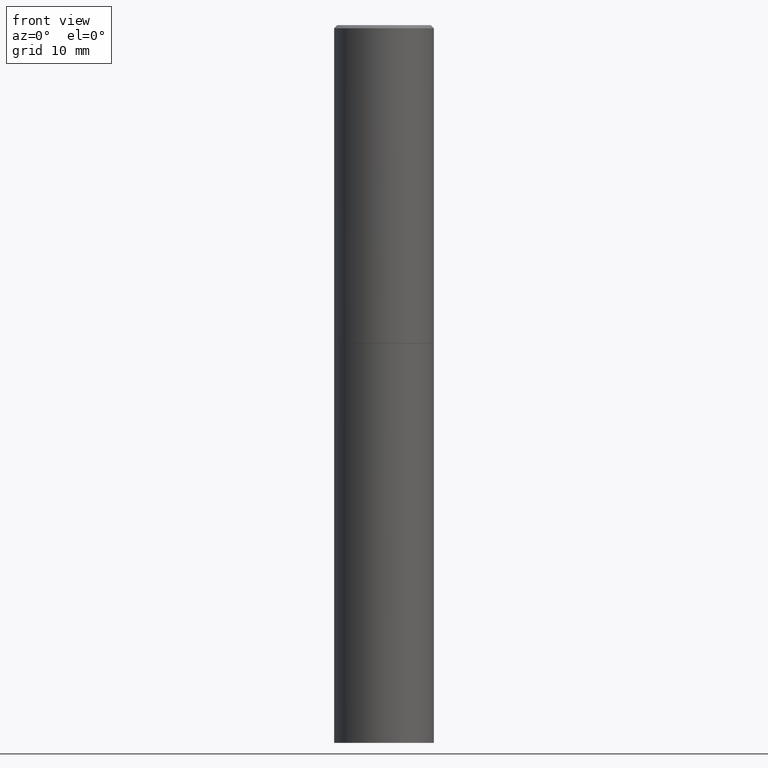
[diagram: clean part render]
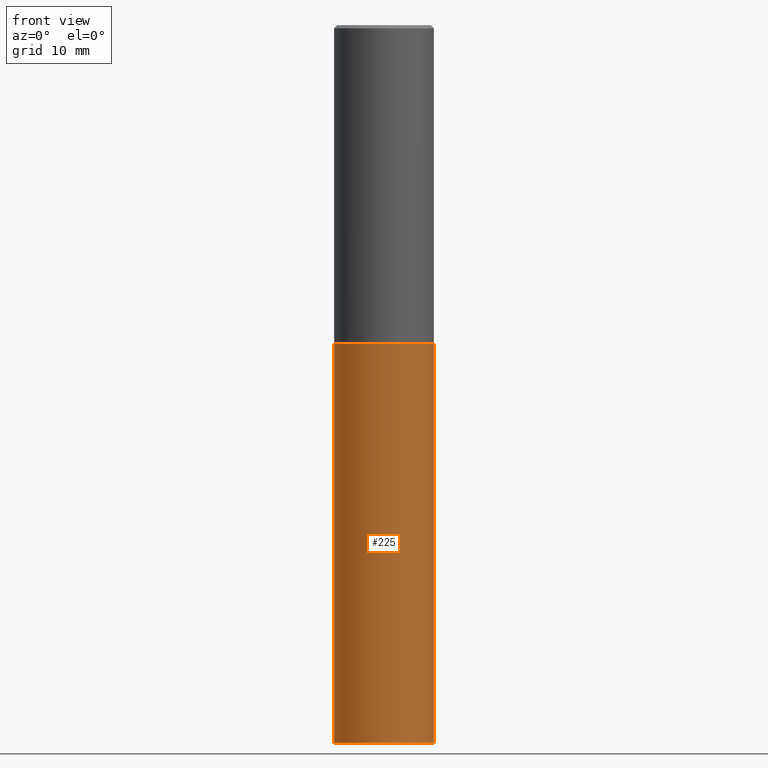
[diagram: same view with one face highlighted and labeled with its STEP entity id]
A machine part, front view. The second image highlights one B-rep face of the part: STEP entity #225.
In plain terms, the highlighted cylindrical surface (partial cylindrical patch) has radius 7.9997 mm, axis along (-0, 0, 1).
Its self-contained STEP definition (entity closure, byte-faithful):
#2 = CARTESIAN_POINT ( 'NONE',  ( 0.3149500000000000077, -1.800731500508351534E-14, -4.527599999999999625 ) ) ;
#5 = DIRECTION ( 'NONE',  ( 1.000000000000000000, -6.982962677686266711E-15, 4.876176775795936353E-29 ) ) ;
#12 = AXIS2_PLACEMENT_3D ( 'NONE', #120, #138, #5 ) ;
#13 = EDGE_LOOP ( 'NONE', ( #298, #51, #235, #209 ) ) ;
#25 = VERTEX_POINT ( 'NONE', #137 ) ;
#51 = ORIENTED_EDGE ( 'NONE', *, *, #111, .T. ) ;
#61 = EDGE_CURVE ( 'NONE', #323, #131, #87, .T. ) ;
#79 = EDGE_CURVE ( 'NONE', #25, #323, #161, .T. ) ;
#81 = DIRECTION ( 'NONE',  ( 1.000000000000000000, -6.982962677686269866E-15, 0.000000000000000000 ) ) ;
#83 = DIRECTION ( 'NONE',  ( 1.000000000000000000, -6.982962677686269866E-15, 0.000000000000000000 ) ) ;
#86 = DIRECTION ( 'NONE',  ( -2.445468806185136877E-29, 3.491481338843145188E-15, 1.000000000000000000 ) ) ;
#87 = CIRCLE ( 'NONE', #285, 0.3149500000000000077 ) ;
#91 = CARTESIAN_POINT ( 'NONE',  ( 0.3149500000000000077, -2.199284095337289871E-15, 1.535751875536930130E-29 ) ) ;
#94 = DIRECTION ( 'NONE',  ( -2.445468806185136877E-29, 3.491481338843145188E-15, 1.000000000000000000 ) ) ;
#96 = CYLINDRICAL_SURFACE ( 'NONE', #12, 0.3149500000000000077 ) ;
#111 = EDGE_CURVE ( 'NONE', #25, #265, #130, .T. ) ;
#120 = CARTESIAN_POINT ( 'NONE',  ( 0.000000000000000000, 0.000000000000000000, 0.000000000000000000 ) ) ;
#130 = CIRCLE ( 'NONE', #221, 0.3149500000000000077 ) ;
#131 = VERTEX_POINT ( 'NONE', #365 ) ;
#137 = CARTESIAN_POINT ( 'NONE',  ( -0.3149500000000000077, -9.171433798728249845E-15, -4.527599999999999625 ) ) ;
#138 = DIRECTION ( 'NONE',  ( -2.445468806185136597E-29, 3.491481338843145583E-15, 1.000000000000000000 ) ) ;
#161 = LINE ( 'NONE', #213, #201 ) ;
#201 = VECTOR ( 'NONE', #86, 39.37007874015748143 ) ;
#209 = ORIENTED_EDGE ( 'NONE', *, *, #61, .F. ) ;
#213 = CARTESIAN_POINT ( 'NONE',  ( -0.3149500000000000077, 2.237854346276435590E-15, -1.549218606675782676E-29 ) ) ;
#214 = VECTOR ( 'NONE', #94, 39.37007874015748143 ) ;
#216 = DIRECTION ( 'NONE',  ( -2.445468806185136597E-29, 3.491481338843145583E-15, 1.000000000000000000 ) ) ;
#221 = AXIS2_PLACEMENT_3D ( 'NONE', #333, #271, #83 ) ;
#225 = ADVANCED_FACE ( 'NONE', ( #311 ), #96, .T. ) ;
#235 = ORIENTED_EDGE ( 'NONE', *, *, #294, .T. ) ;
#265 = VERTEX_POINT ( 'NONE', #2 ) ;
#271 = DIRECTION ( 'NONE',  ( -2.445468806185136597E-29, 3.491481338843145583E-15, 1.000000000000000000 ) ) ;
#280 = LINE ( 'NONE', #91, #214 ) ;
#285 = AXIS2_PLACEMENT_3D ( 'NONE', #303, #216, #81 ) ;
#294 = EDGE_CURVE ( 'NONE', #265, #131, #280, .T. ) ;
#298 = ORIENTED_EDGE ( 'NONE', *, *, #79, .F. ) ;
#303 = CARTESIAN_POINT ( 'NONE',  ( 4.910256815939134188E-29, -7.010545380263150133E-15, -2.007899999999999352 ) ) ;
#311 = FACE_OUTER_BOUND ( 'NONE', #13, .T. ) ;
#323 = VERTEX_POINT ( 'NONE', #345 ) ;
#333 = CARTESIAN_POINT ( 'NONE',  ( 1.107210456688382298E-28, -1.580803090974622389E-14, -4.527599999999999625 ) ) ;
#345 = CARTESIAN_POINT ( 'NONE',  ( -0.3149500000000000077, -9.171433798728249845E-15, -2.007899999999999352 ) ) ;
#365 = CARTESIAN_POINT ( 'NONE',  ( 0.3149500000000000077, -9.209829475600440793E-15, -2.007899999999999352 ) ) ;